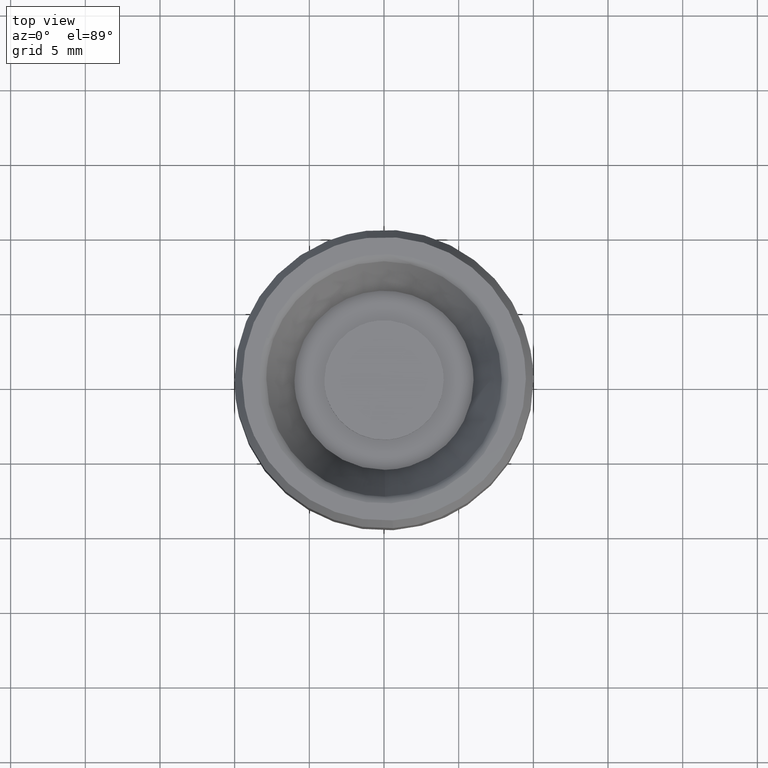
[diagram: clean part render]
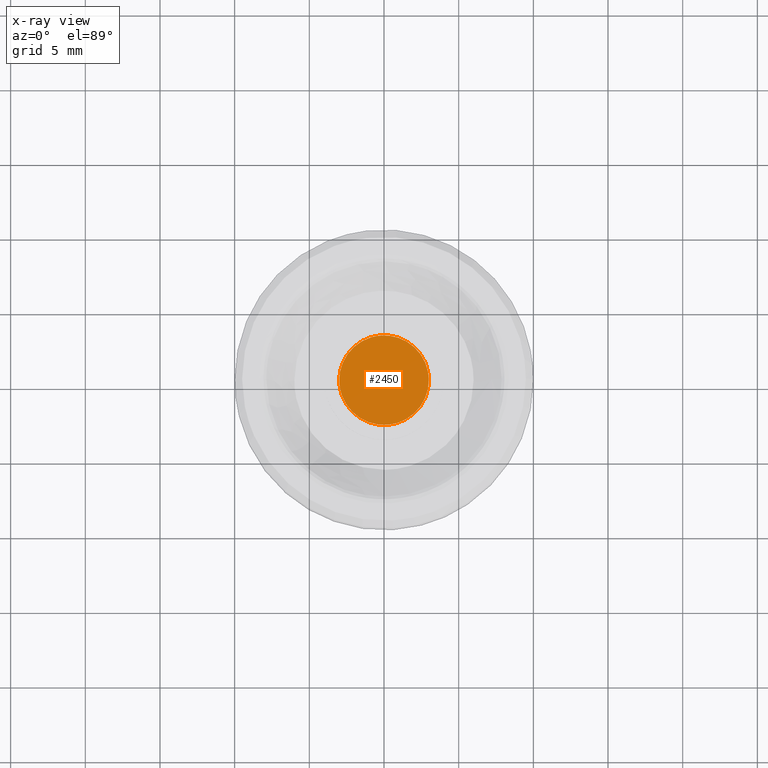
[diagram: x-ray — body ghosted, one internal face saturated and labeled with its STEP entity id]
A machine part, top view, then the same camera in x-ray: the body is ghosted and one INTERNAL B-rep face — a face not visible from any outside direction — is saturated and labeled: STEP entity #2450.
In plain terms, the highlighted face is a freeform B-spline surface patch.
Its self-contained STEP definition (entity closure, byte-faithful):
#1069=CARTESIAN_POINT('',(0.354098092515740,-2.979029127225034,9.499999999999968));
#1070=VERTEX_POINT('',#1069);
#1071=CARTESIAN_POINT('',(-3.0,0.0,9.500000000000000));
#1072=VERTEX_POINT('',#1071);
#1073=CARTESIAN_POINT('',(0.354098092515740,-2.979029127225035,9.499999999999968));
#1074=CARTESIAN_POINT('',(0.177670028853144,-3.0,9.500000000000000));
#1075=CARTESIAN_POINT('',(0.0,-3.0,9.500000000000000));
#1076=CARTESIAN_POINT('',(-3.0,-3.0,9.500000000000000));
#1077=CARTESIAN_POINT('',(-3.0,0.0,9.500000000000000));
#1085=(BOUNDED_CURVE()B_SPLINE_CURVE(2,(#1073,#1074,#1075,#1076,#1077),.UNSPECIFIED.,.F.,.U.)B_SPLINE_CURVE_WITH_KNOTS((3,2,3),(0.229562735128062,0.250000000000000,0.500000000000000),.UNSPECIFIED.)CURVE()GEOMETRIC_REPRESENTATION_ITEM()RATIONAL_B_SPLINE_CURVE((0.956027266959573,0.976056254831660,1.0,0.707106781186548,1.0))REPRESENTATION_ITEM(''));
#1086=EDGE_CURVE('',#1070,#1072,#1085,.T.);
#1127=CARTESIAN_POINT('',(-0.183145618634155,2.994404395263791,9.500000000000000));
#1128=VERTEX_POINT('',#1127);
#1134=CARTESIAN_POINT('',(-3.0,0.0,9.500000000000000));
#1135=CARTESIAN_POINT('',(-3.0,2.822118200661214,9.500000000000000));
#1136=CARTESIAN_POINT('',(-0.183145618634155,2.994404395263791,9.500000000000000));
#1144=(BOUNDED_CURVE()B_SPLINE_CURVE(2,(#1134,#1135,#1136),.UNSPECIFIED.,.F.,.U.)B_SPLINE_CURVE_WITH_KNOTS((3,3),(0.500000000000000,0.739332962238559),.UNSPECIFIED.)CURVE()GEOMETRIC_REPRESENTATION_ITEM()RATIONAL_B_SPLINE_CURVE((1.0,0.719603993287160,0.976072041665894))REPRESENTATION_ITEM(''));
#1145=EDGE_CURVE('',#1072,#1128,#1144,.T.);
#1172=CARTESIAN_POINT('',(3.0,0.0,9.500000000000000));
#1173=VERTEX_POINT('',#1172);
#1174=CARTESIAN_POINT('',(3.0,0.0,9.500000000000000));
#1175=CARTESIAN_POINT('',(3.000000000000000,-2.664527731501561,9.500000000000000));
#1176=CARTESIAN_POINT('',(0.354098092515740,-2.979029127225035,9.499999999999968));
#1184=(BOUNDED_CURVE()B_SPLINE_CURVE(2,(#1174,#1175,#1176),.UNSPECIFIED.,.F.,.U.)B_SPLINE_CURVE_WITH_KNOTS((3,3),(0.0,0.229562735128062),.UNSPECIFIED.)CURVE()GEOMETRIC_REPRESENTATION_ITEM()RATIONAL_B_SPLINE_CURVE((1.0,0.731050526354887,0.956027266959573))REPRESENTATION_ITEM(''));
#1185=EDGE_CURVE('',#1173,#1070,#1184,.T.);
#1187=CARTESIAN_POINT('',(-0.183145618634155,2.994404395263791,9.500000000000000));
#1188=CARTESIAN_POINT('',(-0.091658289925434,3.000000000000000,9.500000000000000));
#1189=CARTESIAN_POINT('',(0.0,3.0,9.500000000000000));
#1190=CARTESIAN_POINT('',(3.0,3.0,9.500000000000000));
#1191=CARTESIAN_POINT('',(3.0,0.0,9.500000000000000));
#1199=(BOUNDED_CURVE()B_SPLINE_CURVE(2,(#1187,#1188,#1189,#1190,#1191),.UNSPECIFIED.,.F.,.U.)B_SPLINE_CURVE_WITH_KNOTS((3,2,3),(0.739332962238559,0.750000000000000,1.0),.UNSPECIFIED.)CURVE()GEOMETRIC_REPRESENTATION_ITEM()RATIONAL_B_SPLINE_CURVE((0.976072041665895,0.987502787899387,1.0,0.707106781186548,1.0))REPRESENTATION_ITEM(''));
#1200=EDGE_CURVE('',#1128,#1173,#1199,.T.);
#2439=CARTESIAN_POINT('',(-3.299699988370835,-3.299645593606510,9.500000000000000));
#2440=CARTESIAN_POINT('',(3.299700149303376,-3.299645593606510,9.500000000000000));
#2441=CARTESIAN_POINT('',(-3.299699988370835,3.299626979075948,9.500000000000000));
#2442=CARTESIAN_POINT('',(3.299700149303376,3.299626979075948,9.500000000000000));
#2443=B_SPLINE_SURFACE_WITH_KNOTS('',1,1,((#2439,#2441),(#2440,#2442)),.UNSPECIFIED.,.F.,.F.,.U.,(2,2),(2,2),(0.0,6.599400137674212),(0.0,6.599272572682459),.UNSPECIFIED.);
#2444=ORIENTED_EDGE('',*,*,#1185,.T.);
#2445=ORIENTED_EDGE('',*,*,#1086,.T.);
#2446=ORIENTED_EDGE('',*,*,#1145,.T.);
#2447=ORIENTED_EDGE('',*,*,#1200,.T.);
#2448=EDGE_LOOP('',(#2444,#2445,#2446,#2447));
#2449=FACE_OUTER_BOUND('',#2448,.T.);
#2450=ADVANCED_FACE('',(#2449),#2443,.F.);